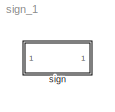
MODEL sign_1
KIND model
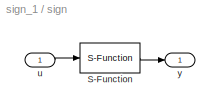
BLOCK [SubSystem] sign
  MinAlgLoopOccurrences = off
  Ports = [1, 1]
  RTWSystemCode = Auto
  TreatAsAtomicUnit = off
BLOCK [S-Function] sign/S-Function
  FunctionName = s_sign
  Ports = [1, 1]
BLOCK [Inport] sign/u
  IconDisplay = Port number
  LatchInput = off
  Port = 1
BLOCK [Outport] sign/y
  IconDisplay = Port number
LINE sign/S-Function:1 -> sign/y:1
LINE sign/u:1 -> sign/S-Function:1
